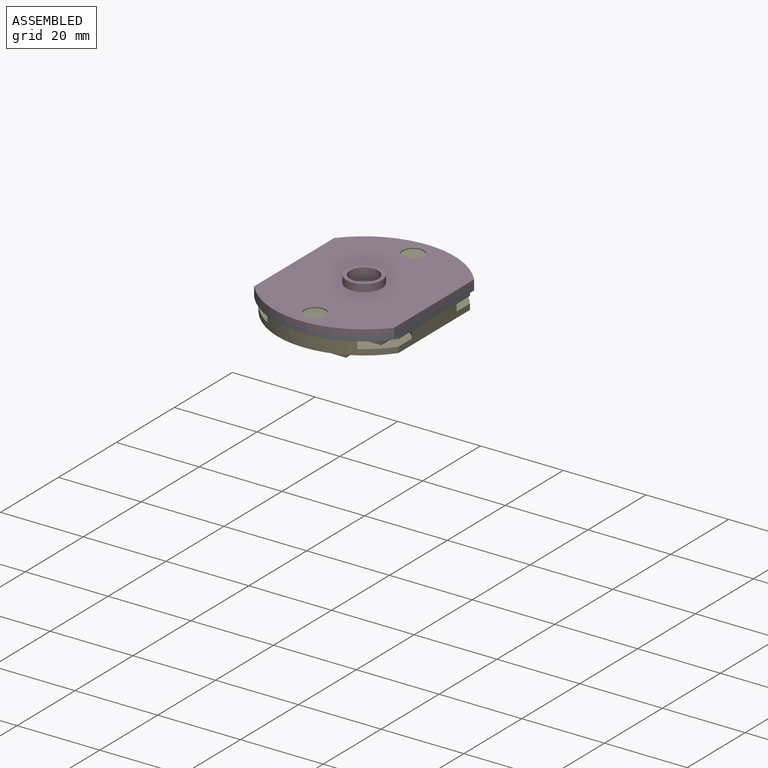
[diagram: assembled view]
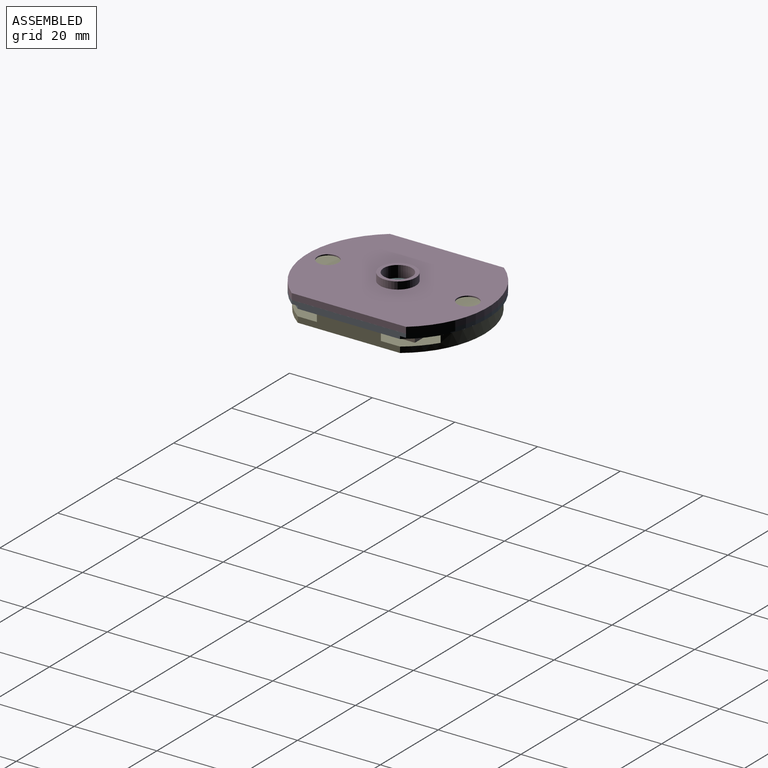
[diagram: assembled view, second angle]
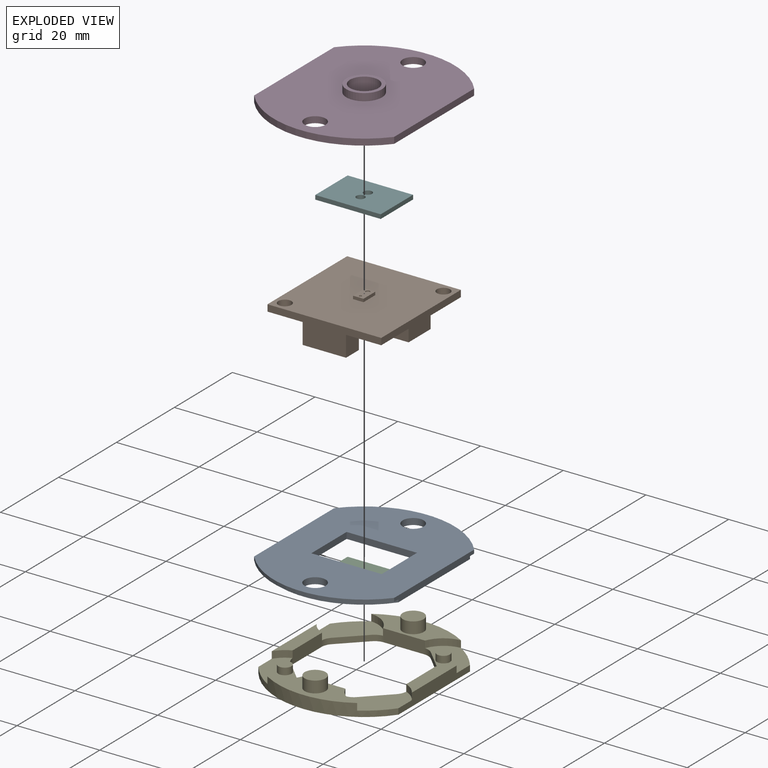
[diagram: exploded view]
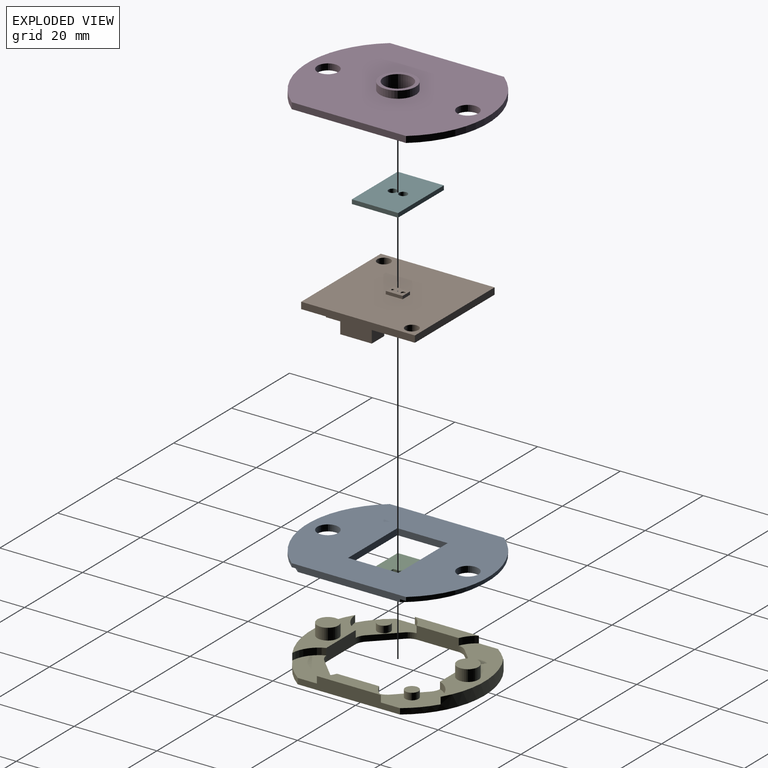
[diagram: exploded view, second angle]
ASSEMBLY  parts=6 mates=10
PART A: 16 faces, bbox 33.9x43.7x1.5 mm
  f0: plane 17.02x1.52mm, normal (0,-1,0), area 25.9mm2, adj f1,f9,f10,f14
  f1: plane 12.19x1.52mm, normal (-1,0,0), area 18.6mm2, adj f0,f2,f10,f14
  f2: plane 17.02x1.52mm, normal (0,1,0), area 25.9mm2, adj f1,f9,f10,f14
  f3: plane 27.62x1.52mm, normal (-1,0,0), area 40.2mm2, adj f4,f7,f10,f11,f12,f13,f14,f15
  f4: cylinder r=20.96mm len=33.85mm, axis (0,0,-1), area 26mm2, adj f3,f5,f10,f11
  f5: plane 27.62x1.52mm, normal (1,0,0), area 40.2mm2, adj f4,f7,f10,f11,f12,f13,f14,f15
  f6: cylinder r=2.54mm len=5.08mm, axis (0,0,-1), area 24.3mm2, adj f10,f14
  f7: cylinder r=20.96mm len=33.85mm, axis (0,0,-1), area 26mm2, adj f3,f5,f10,f15
  f8: cylinder r=2.54mm len=5.08mm, axis (0,0,-1), area 24.3mm2, adj f10,f14
  f9: plane 12.19x1.52mm, normal (1,0,0), area 18.6mm2, adj f0,f2,f10,f14
  f10: plane 41.91x33.85mm, normal (0,0,-1), area 995.9mm2, adj f0,f1,f2,f3,f4,f5,f6,f7
  f11: plane 33.85x9.49mm, normal (0,0,-1), area 34.7mm2, adj f3,f4,f5,f12
  f12: cylinder r=21.84mm len=33.85mm, axis (0,0,-1), area 33.4mm2, adj f3,f5,f11,f14
  f13: cylinder r=21.84mm len=33.85mm, axis (0,0,-1), area 33.4mm2, adj f3,f5,f14,f15
  f14: plane 43.69x33.85mm, normal (0,0,1), area 1065.4mm2, adj f0,f1,f2,f3,f5,f6,f8,f9
  f15: plane 33.85x9.49mm, normal (0,0,-1), area 34.7mm2, adj f3,f5,f7,f13
PART B: 25 faces, bbox 27.5x27.5x7.3 mm
  f0: plane 27.5x27.5mm, normal (0,0,-1), area 660.9mm2, adj f1,f2,f3,f4,f5,f6,f17,f18
  f1: plane 27.5x6.6mm, normal (0,-1,0), area 96.5mm2, adj f0,f2,f4,f7,f21,f23,f24
  f2: plane 27.5x4.57mm, normal (1,0,0), area 66.6mm2, adj f0,f1,f3,f7,f17,f19,f20
  f3: plane 27.5x1.6mm, normal (0,1,0), area 44mm2, adj f0,f2,f4,f7
  f4: plane 27.5x1.6mm, normal (-1,0,0), area 44mm2, adj f0,f1,f3,f7
  f5: cylinder r=1.59mm len=3.18mm, axis (0,0,-1), area 16mm2, adj f0,f7
  f6: cylinder r=1.59mm len=3.18mm, axis (0,0,-1), area 16mm2, adj f0,f7
  f7: plane 27.5x27.5mm, normal (0,0,1), area 730.1mm2, adj f1,f2,f3,f4,f5,f6,f8,f9
  f8: plane 4.06x0.74mm, normal (1,0,0), area 3mm2, adj f7,f9,f12,f14
  f9: plane 2.54x0.74mm, normal (0,1,0), area 1.9mm2, adj f7,f8,f10,f14
  f10: plane 4.06x0.74mm, normal (-1,0,0), area 3mm2, adj f7,f9,f12,f14
  f11: cylinder r=0.32mm len=0.64mm, axis (0,0,-1), area 0.5mm2, adj f14,f15
  f12: plane 2.54x0.74mm, normal (0,-1,0), area 1.9mm2, adj f7,f8,f10,f14
  f13: cylinder r=0.51mm len=1.02mm, axis (0,0,-1), area 0.8mm2, adj f14,f16
  f14: plane 4.06x2.54mm, normal (0,0,1), area 9.2mm2, adj f8,f9,f10,f11,f12,f13
  f15: plane 0.64x0.64mm, normal (0,0,1), area 0.3mm2, adj f11
  f16: plane 1.02x1.02mm, normal (0,0,1), area 0.8mm2, adj f13
  f17: plane 4.32x2.97mm, normal (0,1,0), area 12.8mm2, adj f0,f2,f18,f20
  f18: plane 7.62x2.97mm, normal (-1,0,0), area 22.6mm2, adj f0,f17,f19,f20
  f19: plane 4.32x2.97mm, normal (0,-1,0), area 12.8mm2, adj f0,f2,f18,f20
  f20: plane 7.62x4.32mm, normal (0,0,-1), area 32.9mm2, adj f2,f17,f18,f19
  f21: plane 5x4.45mm, normal (1,0,0), area 22.2mm2, adj f0,f1,f22,f24
  f22: plane 10.49x5mm, normal (0,1,0), area 52.5mm2, adj f0,f21,f23,f24
  f23: plane 5x4.45mm, normal (-1,0,0), area 22.2mm2, adj f0,f1,f22,f24
  f24: plane 10.49x4.45mm, normal (0,0,-1), area 46.6mm2, adj f1,f21,f22,f23
PART C: 10 faces, bbox 15.8x11.2x1 mm
  f0: plane 2.54x1.02mm, normal (0,-1,0), area 2.6mm2, adj f1,f7,f8,f9
  f1: plane 4.06x1.02mm, normal (-1,0,0), area 4.1mm2, adj f0,f2,f8,f9
  f2: plane 2.54x1.02mm, normal (0,1,0), area 2.6mm2, adj f1,f7,f8,f9
  f3: plane 11.18x1.02mm, normal (1,0,0), area 11.4mm2, adj f4,f6,f8,f9
  f4: plane 15.82x1.02mm, normal (0,1,0), area 16.1mm2, adj f3,f5,f8,f9
  f5: plane 11.18x1.02mm, normal (-1,0,0), area 11.4mm2, adj f4,f6,f8,f9
  f6: plane 15.82x1.02mm, normal (0,-1,0), area 16.1mm2, adj f3,f5,f8,f9
  f7: plane 4.06x1.02mm, normal (1,0,0), area 4.1mm2, adj f0,f2,f8,f9
  f8: plane 15.82x11.18mm, normal (0,0,1), area 166.5mm2, adj f0,f1,f2,f3,f4,f5,f6,f7
  f9: plane 15.82x11.18mm, normal (0,0,-1), area 166.5mm2, adj f0,f1,f2,f3,f4,f5,f6,f7
PART D: 13 faces, bbox 33.9x43.7x3.3 mm
  f0: cylinder r=2.54mm len=5.08mm, axis (0,0,-1), area 12.2mm2, adj f5,f9,f10
  f1: cylinder r=2.54mm len=5.08mm, axis (0,0,-1), area 12.2mm2, adj f6,f9,f10
  f2: plane 27.64x1.52mm, normal (1,0,0), area 42.1mm2, adj f3,f7,f9,f10
  f3: cylinder r=21.84mm len=33.85mm, axis (0,0,-1), area 59mm2, adj f2,f4,f9,f10
  f4: plane 27.59x1.52mm, normal (-1,0,0), area 42.1mm2, adj f3,f7,f9,f10
  f5: cylinder r=2.54mm len=5.08mm, axis (0,0,-1), area 12.2mm2, adj f0,f9,f10
  f6: cylinder r=2.54mm len=5.08mm, axis (0,0,-1), area 12.2mm2, adj f1,f9,f10
  f7: cylinder r=21.84mm len=33.85mm, axis (0,0,-1), area 59mm2, adj f2,f4,f9,f10
  f8: cylinder r=3.43mm len=6.86mm, axis (0,0,-1), area 71.1mm2, adj f10,f12
  f9: plane 43.69x33.85mm, normal (0,0,1), area 1214.2mm2, adj f0,f1,f2,f3,f4,f5,f6,f7
  f10: plane 43.69x33.85mm, normal (0,0,-1), area 1235.8mm2, adj f0,f1,f2,f3,f4,f5,f6,f7
  f11: cylinder r=4.32mm len=8.64mm, axis (0,0,-1), area 48.2mm2, adj f9,f12
  f12: plane 8.64x8.64mm, normal (0,0,1), area 21.6mm2, adj f8,f11
PART E: 45 faces, bbox 33.9x41.9x5.8 mm
  f0: plane 9.78x3.05mm, normal (0,-1,0), area 29.8mm2, adj f11,f12,f37,f40
  f1: plane 9.78x3.05mm, normal (1,0,0), area 29.8mm2, adj f4,f11,f38,f43
  f2: cylinder r=20.96mm len=33.85mm, axis (0,0,1), area 92.7mm2, adj f3,f6,f11,f12,f26,f27,f30,f32
  f3: plane 24.71x3.05mm, normal (-1,0,0), area 60.1mm2, adj f2,f4,f8,f11,f18,f20,f30,f31
  f4: plane 15.47x3.18mm, normal (0,0,1), area 38.9mm2, adj f1,f3,f20,f31,f38,f43
  f5: plane 9.78x3.05mm, normal (-1,0,0), area 29.8mm2, adj f7,f11,f39,f42
  f6: plane 24.71x3.05mm, normal (1,0,0), area 60.1mm2, adj f2,f7,f8,f11,f22,f24,f26,f28
  f7: plane 15.47x3.18mm, normal (0,0,1), area 38.9mm2, adj f5,f6,f24,f28,f39,f42
  f8: cylinder r=20.96mm len=33.85mm, axis (0,0,1), area 92.7mm2, adj f3,f6,f10,f11,f18,f19,f22,f23
  f9: plane 9.78x3.05mm, normal (0,1,0), area 29.8mm2, adj f10,f11,f41,f44
  f10: plane 21.7x7.21mm, normal (0,0,1), area 80.8mm2, adj f8,f9,f15,f19,f23,f41,f44
  f11: plane 41.91x33.85mm, normal (0,0,-1), area 603.2mm2, adj f0,f1,f2,f3,f5,f6,f8,f9
  f12: plane 21.7x7.21mm, normal (0,0,1), area 80.8mm2, adj f0,f2,f13,f27,f32,f37,f40
  f13: cylinder r=2.54mm len=5.08mm, axis (0,0,-1), area 44.6mm2, adj f12,f14
  f14: plane 5.08x5.08mm, normal (0,0,1), area 20.3mm2, adj f13
  f15: cylinder r=2.54mm len=5.08mm, axis (0,0,-1), area 44.6mm2, adj f10,f16
  f16: plane 5.08x5.08mm, normal (0,0,1), area 20.3mm2, adj f15
  f17: plane 5.68x5.68mm, normal (0.71,0.71,0), area 11.2mm2, adj f11,f18,f43,f44
  f18: plane 12.85x11.84mm, normal (0,0,1), area 72.9mm2, adj f3,f8,f17,f19,f20,f34,f43,f44
  f19: cylinder r=6.67mm len=5.77mm, axis (0,0,-1), area 12.4mm2, adj f8,f10,f18,f44
  f20: cylinder r=6.67mm len=3.18mm, axis (0,0,-1), area 7mm2, adj f3,f4,f18,f43
  f21: plane 5.68x5.68mm, normal (-0.71,0.71,0), area 11.2mm2, adj f11,f22,f41,f42
  f22: plane 12.85x11.84mm, normal (0,0,1), area 80.8mm2, adj f6,f8,f21,f23,f24,f41,f42
  f23: cylinder r=6.67mm len=5.77mm, axis (0,0,-1), area 12.4mm2, adj f8,f10,f22,f41
  f24: cylinder r=6.67mm len=3.18mm, axis (0,0,-1), area 7mm2, adj f6,f7,f22,f42
  f25: plane 5.68x5.68mm, normal (-0.71,-0.71,0), area 11.2mm2, adj f11,f26,f39,f40
  f26: plane 12.85x11.84mm, normal (0,0,1), area 72.9mm2, adj f2,f6,f25,f27,f28,f36,f39,f40
  f27: cylinder r=6.67mm len=5.77mm, axis (0,0,-1), area 12.4mm2, adj f2,f12,f26,f40
  f28: cylinder r=6.67mm len=3.18mm, axis (0,0,-1), area 7mm2, adj f6,f7,f26,f39
  f29: plane 5.68x5.68mm, normal (0.71,-0.71,0), area 11.2mm2, adj f11,f30,f37,f38
  f30: plane 12.85x11.84mm, normal (0,0,1), area 80.8mm2, adj f2,f3,f29,f31,f32,f37,f38
  f31: cylinder r=6.67mm len=3.18mm, axis (0,0,-1), area 7mm2, adj f3,f4,f30,f38
  f32: cylinder r=6.67mm len=5.77mm, axis (0,0,-1), area 12.4mm2, adj f2,f12,f30,f37
  f33: plane 3.18x3.18mm, normal (0,0,1), area 7.9mm2, adj f34
  f34: cylinder r=1.59mm len=3.18mm, axis (0,0,-1), area 16.5mm2, adj f18,f33
  f35: plane 3.18x3.18mm, normal (0,0,1), area 7.9mm2, adj f36
  f36: cylinder r=1.59mm len=3.18mm, axis (0,0,-1), area 16.5mm2, adj f26,f35
  f37: cylinder r=3.17mm len=3.05mm, axis (0,0,-1), area 3.8mm2, adj f0,f11,f12,f29,f30,f32
  f38: cylinder r=3.17mm len=3.05mm, axis (0,0,-1), area 3.8mm2, adj f1,f4,f11,f29,f30,f31
  f39: cylinder r=3.17mm len=3.05mm, axis (0,0,1), area 3.8mm2, adj f5,f7,f11,f25,f26,f28
  f40: cylinder r=3.17mm len=3.05mm, axis (0,0,-1), area 3.8mm2, adj f0,f11,f12,f25,f26,f27
  f41: cylinder r=3.17mm len=3.05mm, axis (0,0,1), area 3.8mm2, adj f9,f10,f11,f21,f22,f23
  f42: cylinder r=3.17mm len=3.05mm, axis (0,0,1), area 3.8mm2, adj f5,f7,f11,f21,f22,f24
  f43: cylinder r=3.17mm len=3.05mm, axis (0,0,-1), area 3.8mm2, adj f1,f4,f11,f17,f18,f20
  f44: cylinder r=3.17mm len=3.05mm, axis (0,0,1), area 3.8mm2, adj f9,f10,f11,f17,f18,f19
PART F: 8 faces, bbox 15.8x11.2x1 mm
  f0: plane 11.18x1.02mm, normal (1,0,0), area 11.4mm2, adj f1,f5,f6,f7
  f1: plane 15.82x1.02mm, normal (0,1,0), area 16.1mm2, adj f0,f2,f6,f7
  f2: plane 11.18x1.02mm, normal (-1,0,0), area 11.4mm2, adj f1,f5,f6,f7
  f3: cylinder r=1.02mm len=2.03mm, axis (0,0,-1), area 6.5mm2, adj f6,f7
  f4: cylinder r=1.02mm len=2.03mm, axis (0,0,-1), area 6.5mm2, adj f6,f7
  f5: plane 15.82x1.02mm, normal (0,-1,0), area 16.1mm2, adj f0,f2,f6,f7
  f6: plane 15.82x11.18mm, normal (0,0,1), area 170.4mm2, adj f0,f1,f2,f3,f4,f5
  f7: plane 15.82x11.18mm, normal (0,0,-1), area 170.4mm2, adj f0,f1,f2,f3,f4,f5
PLACE A t=(3.04,-1.62,-4.35)mm
PLACE B t=(3.04,-1.62,-5.04)mm
PLACE C t=(3.04,-1.62,-5.04)mm
PLACE D t=(3.04,-1.62,-3.49)mm fixed
PLACE E t=(3.04,-1.62,-4.35)mm
PLACE F t=(3.04,-1.62,-5.04)mm
MATE planar F.f0 <-> C.f3  axis (1,0,0) through (10.96,-1.62,-2.88)mm
MATE planar E.f12 <-> A.f4  axis (0,0,1) through (3.04,15.94,-4.35)mm
MATE planar F.f3 <-> C.f8  axis (0,0,-1) through (3.04,-2.87,-3.39)mm
MATE planar F.f1 <-> C.f4  axis (0,1,0) through (3.04,3.97,-2.88)mm
MATE planar A.f4 <-> D.f3  axis (0,0,1) through (3.04,-1.62,-2.83)mm
MATE slider D.f6 <-> E.f13  axis (0,0,-1) through (3.04,15.31,-2.83)mm
MATE slider C.f9 <-> B.f7  axis (0,0,-1) through (3.04,-1.62,-4.4)mm
MATE planar B.f7 <-> C.f9  axis (0,0,1) through (3.04,-1.62,-4.4)mm
MATE fastened E.f19 <-> B.f6  axis (0,0,-1) through (-8.23,-12.89,-6)mm
MATE slider A.f8 <-> E.f13  axis (0,0,1) through (3.04,15.31,-2.83)mm
